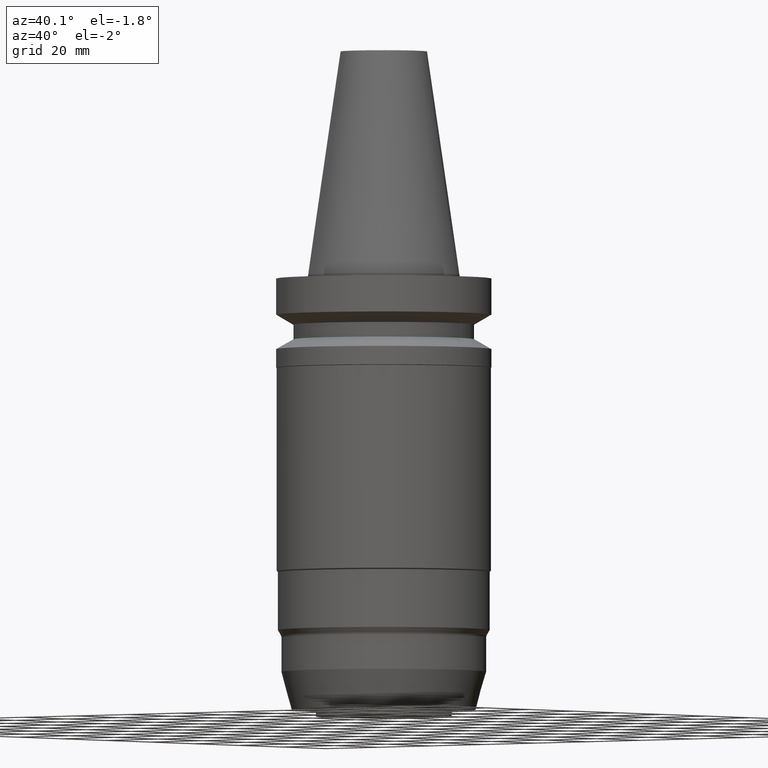
[diagram: clean part render]
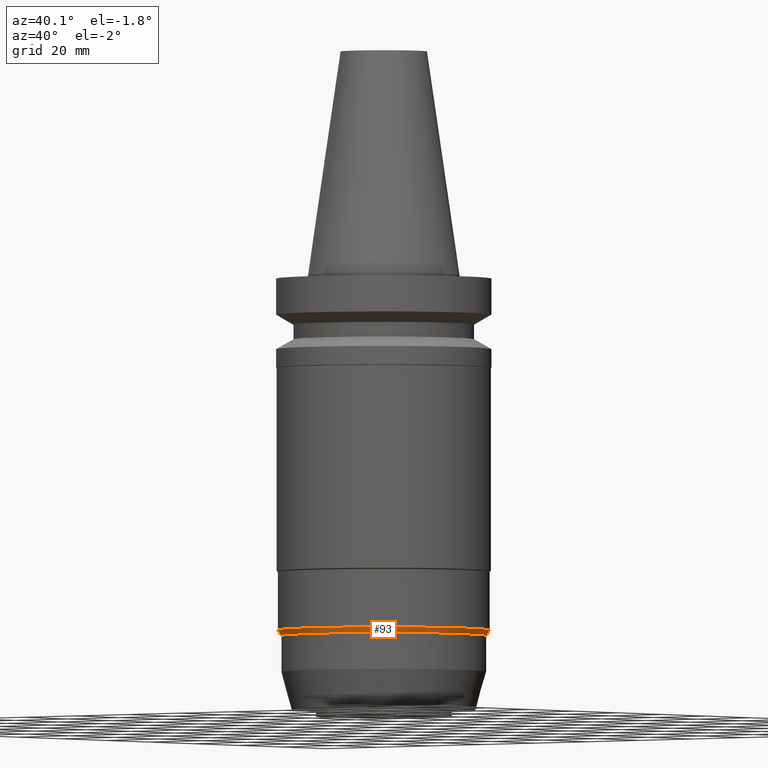
[diagram: same view with one face highlighted and labeled with its STEP entity id]
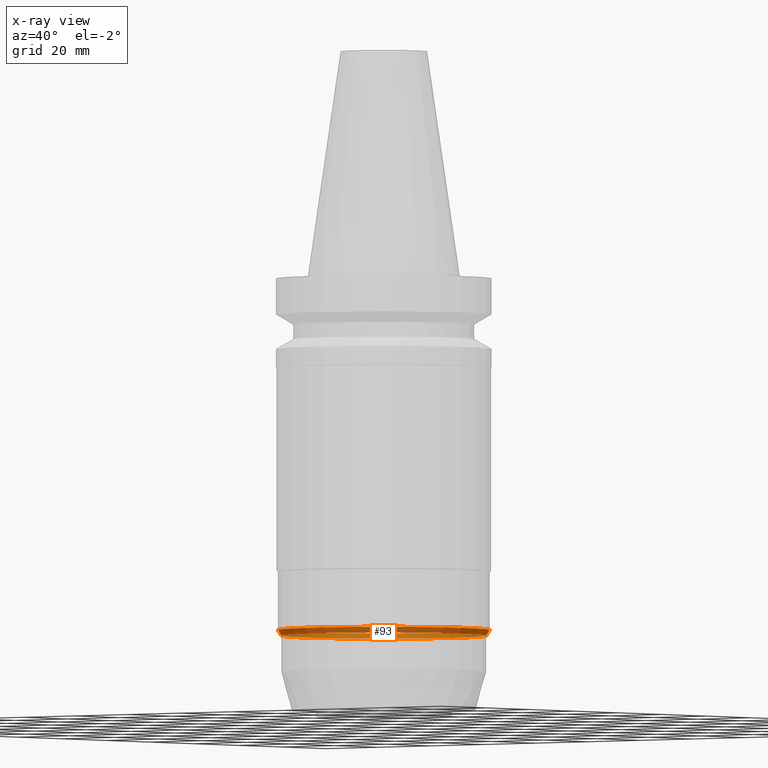
[diagram: x-ray of the same camera — body ghosted, the highlighted face saturated]
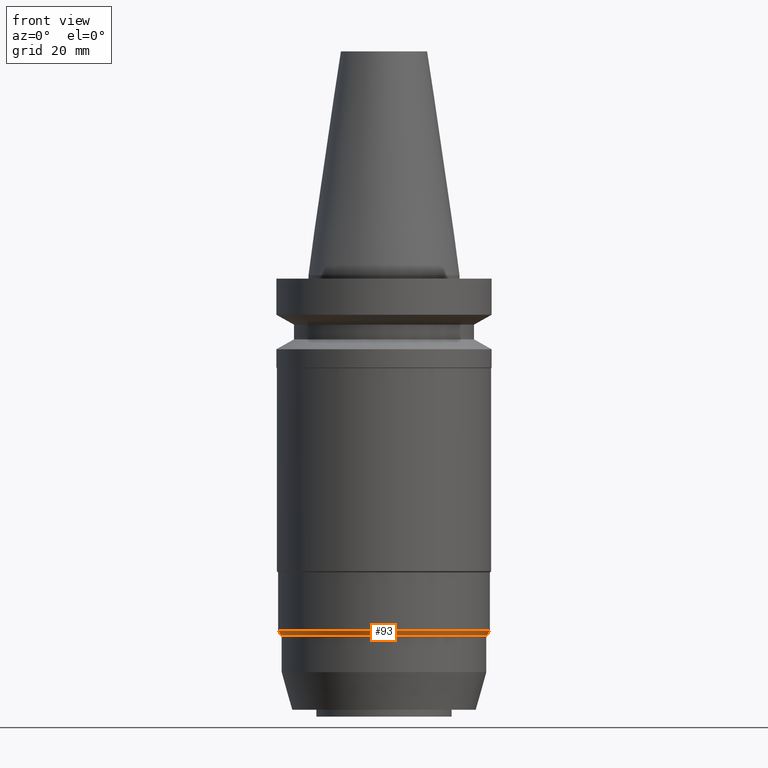
[diagram: same view with one face highlighted and labeled with its STEP entity id]
A machine part, auxiliary view. The second image highlights one B-rep face of the part: STEP entity #93.
The next image is the same camera in x-ray: the body ghosted, the highlighted face saturated — about 44% of this face is hidden behind the body in this view.
A second angle (front view) of the same face is appended — the face is thin or edge-on in the first view.
In plain terms, the highlighted conical surface has half-angle 30 deg.
Its self-contained STEP definition (entity closure, byte-faithful):
#93=ADVANCED_FACE('Unnamed[1]',(#225,#226),#227,.T.);
#129=EDGE_CURVE('Unnamed[1]',#283,#283,#284,.T.);
#161=EDGE_CURVE('Unnamed[1]',#333,#333,#334,.T.);
#225=FACE_BOUND('',#401,.T.);
#226=FACE_BOUND('',#402,.T.);
#227=CONICAL_SURFACE('',#403,30.5419872981074,0.523598775596922);
#283=VERTEX_POINT('',#474);
#284=CIRCLE('',#475,30.0839745962148);
#333=VERTEX_POINT('',#535);
#334=CIRCLE('',#536,31.0);
#401=EDGE_LOOP('',(#592));
#402=EDGE_LOOP('',(#593));
#403=AXIS2_PLACEMENT_3D('',#594,#595,#596);
#474=CARTESIAN_POINT('',(6.45192608556169E-015,30.0839745962148,-105.367949192433));
#475=AXIS2_PLACEMENT_3D('',#657,#658,#659);
#535=CARTESIAN_POINT('',(6.35477469943162E-015,31.0,-103.781346652048));
#536=AXIS2_PLACEMENT_3D('',#712,#713,#714);
#592=ORIENTED_EDGE('',*,*,#129,.F.);
#593=ORIENTED_EDGE('',*,*,#161,.T.);
#594=CARTESIAN_POINT('',(6.40335039249666E-015,6.73758151484159E-014,-104.57464792224));
#595=DIRECTION('',(-6.12323399573677E-017,5.7274749351773E-017,1.0));
#596=DIRECTION('',(-1.32008580748776E-033,1.0,-5.7274749351773E-017));
#657=CARTESIAN_POINT('',(6.45192608556169E-015,6.73303790170053E-014,-105.367949192433));
#658=DIRECTION('',(6.12323399573677E-017,-5.72747493516768E-017,-1.0));
#659=DIRECTION('',(-1.3200858074854E-033,1.0,-5.72747493516768E-017));
#712=CARTESIAN_POINT('',(6.35477469943162E-015,6.74212512798266E-014,-103.781346652048));
#713=DIRECTION('',(6.12323399573677E-017,-5.72747493516579E-017,-1.0));
#714=DIRECTION('',(-1.32008580749006E-033,1.0,-5.72747493516579E-017));